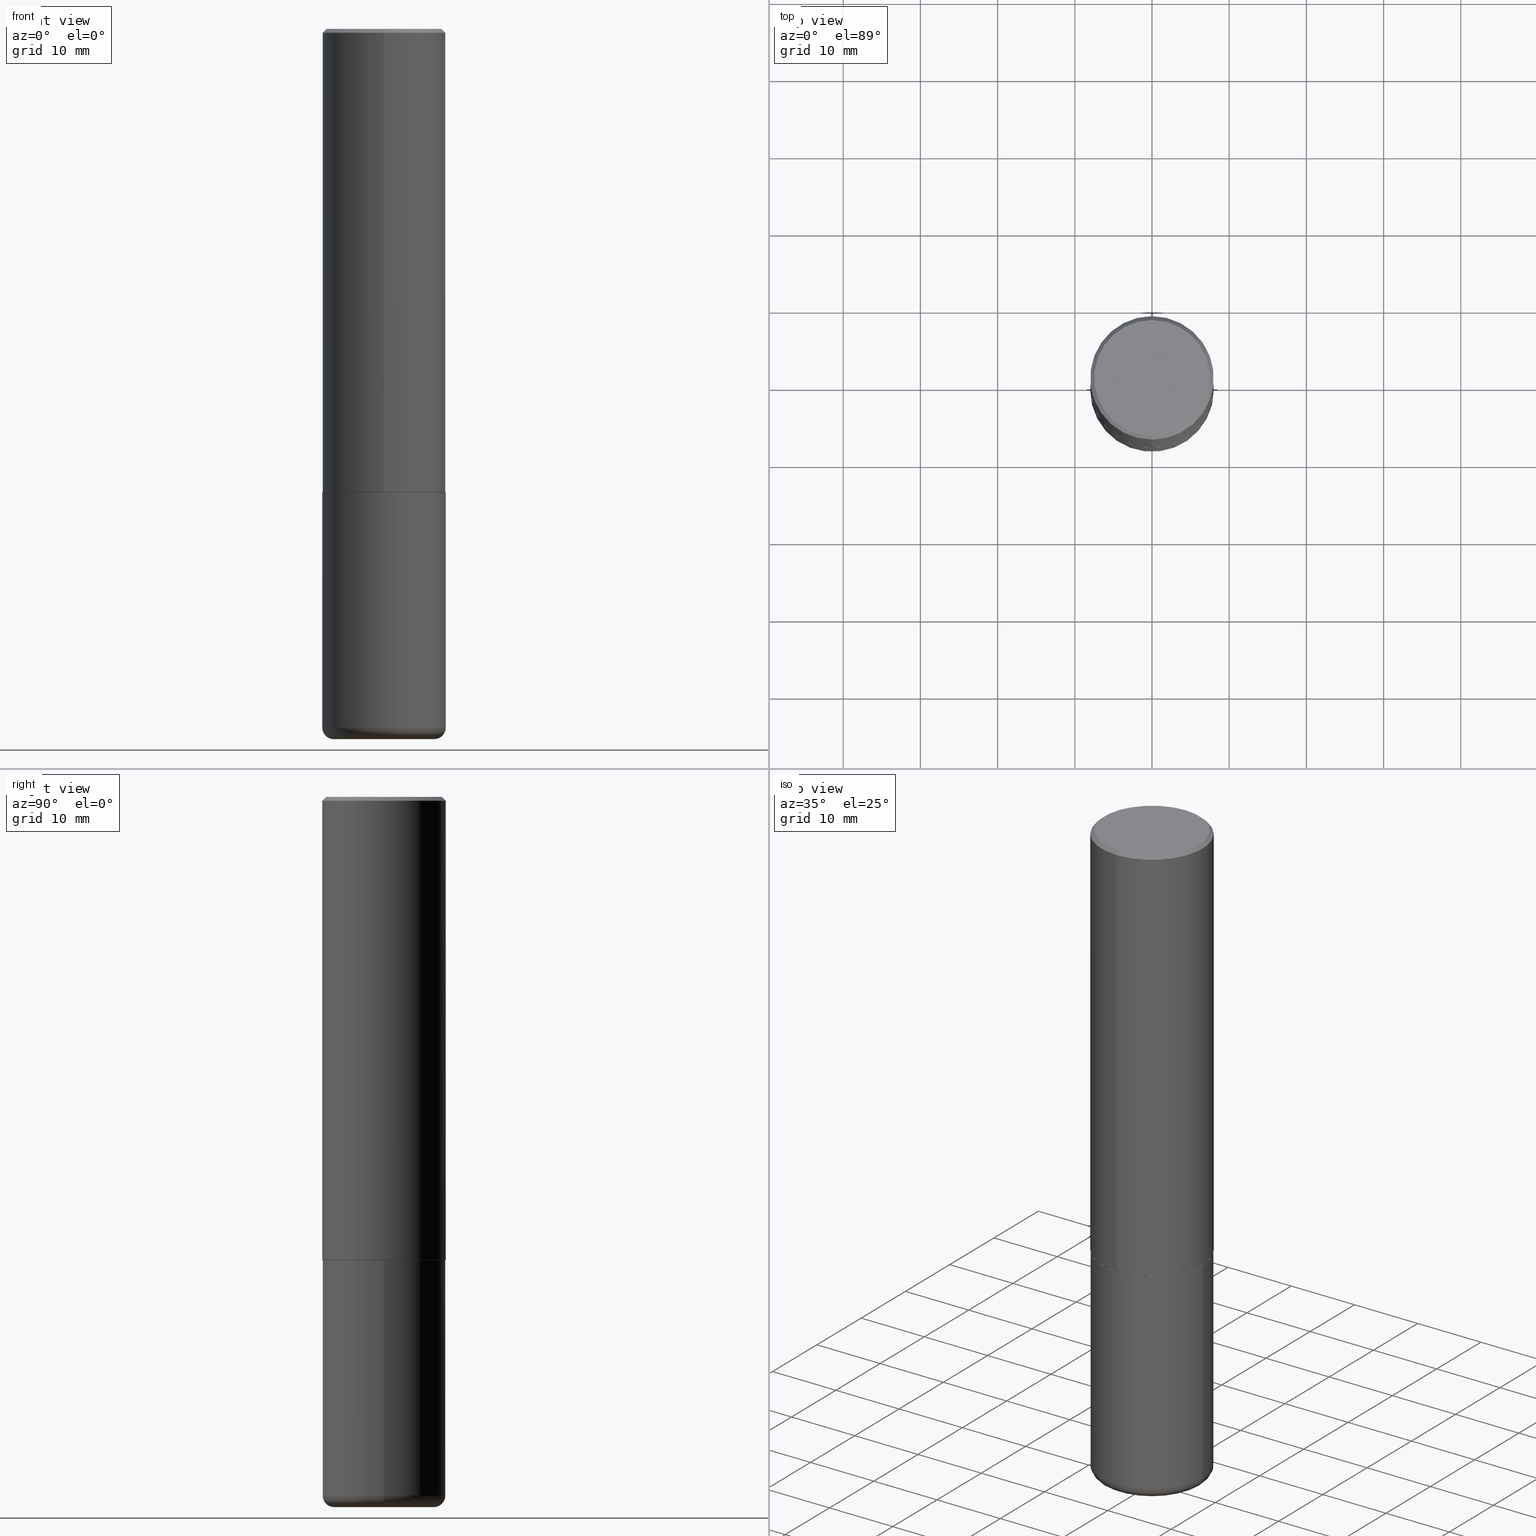
[diagram: canonical four-view strip — front | top / right | iso, engineering-drawing reading convention]
A machine part, canonical four-view strip (front | top / right | iso — engineering-drawing reading convention). The complete STEP part file that produces these views, byte-faithful:
ISO-10303-21;
HEADER;
FILE_DESCRIPTION (( 'STEP AP203' ),
    '1' );
FILE_NAME ('46898.STEP',
    '2024-03-05T06:49:38',
    ( '' ),
    ( '' ),
    'SwSTEP 2.0',
    'SolidWorks 2023',
    '' );
FILE_SCHEMA (( 'CONFIG_CONTROL_DESIGN' ));
ENDSEC;

DATA;
#1 = CC_DESIGN_PERSON_AND_ORGANIZATION_ASSIGNMENT ( #214, #205, ( #362 ) ) ;
#2 = DIRECTION ( 'NONE',  ( -2.445468806185136597E-29, 3.491481338843145583E-15, 1.000000000000000000 ) ) ;
#3 = AXIS2_PLACEMENT_3D ( 'NONE', #187, #211, #182 ) ;
#4 = VERTEX_POINT ( 'NONE', #83 ) ;
#5 = LOCAL_TIME ( 1, 49, 38.00000000000000000, #374 ) ;
#6 = DIRECTION ( 'NONE',  ( 2.446939916028603526E-29, -3.489374625816928275E-15, -1.000000000000000000 ) ) ;
#7 = VERTEX_POINT ( 'NONE', #410 ) ;
#8 = DIRECTION ( 'NONE',  ( -2.445468806185136597E-29, 3.491481338843145583E-15, 1.000000000000000000 ) ) ;
#9 = AXIS2_PLACEMENT_3D ( 'NONE', #99, #391, #240 ) ;
#10 = DATE_AND_TIME ( #294, #225 ) ;
#11 = ORIENTED_EDGE ( 'NONE', *, *, #148, .T. ) ;
#12 = EDGE_CURVE ( 'NONE', #228, #161, #56, .T. ) ;
#13 = VERTEX_POINT ( 'NONE', #49 ) ;
#14 = LOCAL_TIME ( 1, 49, 38.00000000000000000, #409 ) ;
#15 = DIRECTION ( 'NONE',  ( -2.446939916028603526E-29, 3.489374625816928275E-15, 1.000000000000000000 ) ) ;
#16 = FACE_OUTER_BOUND ( 'NONE', #300, .T. ) ;
#17 = EDGE_CURVE ( 'NONE', #161, #345, #52, .T. ) ;
#18 = PERSON_AND_ORGANIZATION_ROLE ( 'design_supplier' ) ;
#19 = DIRECTION ( 'NONE',  ( -6.982962677686266711E-15, -1.000000000000000000, 3.480615376543096919E-15 ) ) ;
#20 = AXIS2_PLACEMENT_3D ( 'NONE', #117, #367, #85 ) ;
#21 = CARTESIAN_POINT ( 'NONE',  ( 8.712960809557023143E-29, -1.243979886216424317E-14, -3.562899999999999956 ) ) ;
#22 = CC_DESIGN_APPROVAL ( #136, ( #274 ) ) ;
#23 = DIRECTION ( 'NONE',  ( 2.446939916028603526E-29, -3.489374625816928275E-15, -1.000000000000000000 ) ) ;
#24 = LINE ( 'NONE', #258, #54 ) ;
#25 = CARTESIAN_POINT ( 'NONE',  ( 0.2558500000000000218, -1.422638986325027382E-14, -3.562899999999999956 ) ) ;
#26 = ORIENTED_EDGE ( 'NONE', *, *, #115, .T. ) ;
#27 = CARTESIAN_POINT ( 'NONE',  ( 0.000000000000000000, 0.000000000000000000, 0.000000000000000000 ) ) ;
#28 = APPLICATION_CONTEXT ( 'configuration controlled 3d designs of mechanical parts and assemblies' ) ;
#29 = DIRECTION ( 'NONE',  ( -6.982962677686266711E-15, -1.000000000000000000, 3.480615376543096919E-15 ) ) ;
#30 = VERTEX_POINT ( 'NONE', #303 ) ;
#31 = DIRECTION ( 'NONE',  ( -1.000000000000000000, 6.982962677686265922E-15, -4.876176775795935793E-29 ) ) ;
#32 = ORIENTED_EDGE ( 'NONE', *, *, #327, .F. ) ;
#33 = CIRCLE ( 'NONE', #267, 0.3149500000000000632 ) ;
#34 = EDGE_CURVE ( 'NONE', #339, #318, #143, .T. ) ;
#35 = DIRECTION ( 'NONE',  ( 1.000000000000000000, -6.982962677686269866E-15, 4.883557194083113462E-29 ) ) ;
#36 = FACE_OUTER_BOUND ( 'NONE', #366, .T. ) ;
#37 = CARTESIAN_POINT ( 'NONE',  ( 4.893879832057223376E-31, -6.978749251633880462E-17, -0.02000000000000006981 ) ) ;
#38 = CONICAL_SURFACE ( 'NONE', #218, 0.3149500000000000632, 0.7853981633974473908 ) ;
#39 = APPROVAL_ROLE ( '' ) ;
#40 = EDGE_LOOP ( 'NONE', ( #194, #139 ) ) ;
#41 = ADVANCED_FACE ( 'NONE', ( #16 ), #120, .T. ) ;
#42 = APPROVAL_DATE_TIME ( #10, #226 ) ;
#43 = ORIENTED_EDGE ( 'NONE', *, *, #283, .F. ) ;
#44 = EDGE_LOOP ( 'NONE', ( #297, #173 ) ) ;
#45 = ADVANCED_FACE ( 'NONE', ( #268 ), #413, .T. ) ;
#46 = CALENDAR_DATE ( 2024, 5, 3 ) ;
#47 = CIRCLE ( 'NONE', #338, 0.3149500000000000077 ) ;
#48 = FACE_OUTER_BOUND ( 'NONE', #206, .T. ) ;
#49 = CARTESIAN_POINT ( 'NONE',  ( -0.3149500000000000077, -8.105833694113324624E-15, -2.362199999999999633 ) ) ;
#50 = CARTESIAN_POINT ( 'NONE',  ( 0.3149500000000000077, -1.044686131395256792E-14, -2.362199999999999633 ) ) ;
#51 = APPROVAL_ROLE ( '' ) ;
#52 = CIRCLE ( 'NONE', #20, 0.3149500000000002853 ) ;
#53 = CARTESIAN_POINT ( 'NONE',  ( 0.3149500000000000077, -2.199284095337289871E-15, 1.535751875536930130E-29 ) ) ;
#54 = VECTOR ( 'NONE', #59, 39.37007874015748143 ) ;
#55 = EDGE_CURVE ( 'NONE', #383, #241, #355, .T. ) ;
#56 = LINE ( 'NONE', #177, #208 ) ;
#57 = CARTESIAN_POINT ( 'NONE',  ( -7.159308785100011389E-46, 1.020928640277417393E-31, 2.925821242362014033E-17 ) ) ;
#58 = ORIENTED_EDGE ( 'NONE', *, *, #186, .F. ) ;
#59 = DIRECTION ( 'NONE',  ( -2.446939916028603526E-29, 3.489374625816928669E-15, 1.000000000000000000 ) ) ;
#60 = DIRECTION ( 'NONE',  ( 7.105427357601001859E-15, 1.000000000000000000, -3.491481338843145583E-15 ) ) ;
#61 = ORIENTED_EDGE ( 'NONE', *, *, #17, .F. ) ;
#62 = PLANE ( 'NONE',  #281 ) ;
#63 = EDGE_CURVE ( 'NONE', #265, #4, #331, .T. ) ;
#64 = ORIENTED_EDGE ( 'NONE', *, *, #108, .T. ) ;
#65 = DIRECTION ( 'NONE',  ( -2.446939916028603526E-29, 3.489374625816928275E-15, 1.000000000000000000 ) ) ;
#66 = CIRCLE ( 'NONE', #157, 0.3149500000000002853 ) ;
#67 = ORIENTED_EDGE ( 'NONE', *, *, #186, .T. ) ;
#68 = DIRECTION ( 'NONE',  ( -6.982962677686265922E-15, -1.000000000000000000, 3.483117034309590343E-15 ) ) ;
#69 = CARTESIAN_POINT ( 'NONE',  ( 8.712960809557023143E-29, -1.243979886216424317E-14, -3.562899999999999956 ) ) ;
#70 = DIRECTION ( 'NONE',  ( 0.000000000000000000, 0.000000000000000000, 1.000000000000000000 ) ) ;
#71 = CC_DESIGN_PERSON_AND_ORGANIZATION_ASSIGNMENT ( #405, #113, ( #274 ) ) ;
#72 = CIRCLE ( 'NONE', #306, 0.3149500000000000077 ) ;
#73 = AXIS2_PLACEMENT_3D ( 'NONE', #57, #260, #359 ) ;
#74 = VERTEX_POINT ( 'NONE', #273 ) ;
#75 = PERSON_AND_ORGANIZATION ( #388, #122 ) ;
#76 = ORIENTED_EDGE ( 'NONE', *, *, #358, .F. ) ;
#77 = EDGE_CURVE ( 'NONE', #161, #30, #334, .T. ) ;
#78 = FACE_OUTER_BOUND ( 'NONE', #326, .T. ) ;
#79 = DATE_AND_TIME ( #181, #378 ) ;
#80 = DIRECTION ( 'NONE',  ( -2.446939916028603526E-29, 3.489374625816928275E-15, 1.000000000000000000 ) ) ;
#81 = APPLICATION_CONTEXT ( 'configuration controlled 3d designs of mechanical parts and assemblies' ) ;
#82 = SHAPE_DEFINITION_REPRESENTATION ( #395, #131 ) ;
#83 = CARTESIAN_POINT ( 'NONE',  ( -2.092108864420428426E-15, -0.2949500000000000455, 1.058449258308323097E-15 ) ) ;
#84 = CARTESIAN_POINT ( 'NONE',  ( 2.237854346276435985E-15, 0.3149500000000001743, -1.098978538401042082E-15 ) ) ;
#85 = DIRECTION ( 'NONE',  ( -6.982962677686265922E-15, -1.000000000000000000, 3.469564049740290009E-15 ) ) ;
#86 = CC_DESIGN_APPROVAL ( #226, ( #204 ) ) ;
#87 = DIRECTION ( 'NONE',  ( -2.445468806185136597E-29, 3.491481338843145583E-15, 1.000000000000000000 ) ) ;
#88 = EDGE_CURVE ( 'NONE', #345, #161, #66, .T. ) ;
#89 = CARTESIAN_POINT ( 'NONE',  ( -0.2558500000000000218, -1.062187527272202748E-14, -3.562899999999999956 ) ) ;
#90 = PRODUCT ( '46898', '46898', '', ( #291 ) ) ;
#91 = ORIENTED_EDGE ( 'NONE', *, *, #340, .F. ) ;
#92 = CARTESIAN_POINT ( 'NONE',  ( 2.234301632597693067E-15, 0.3139499999999917357, -2.362200000000000966 ) ) ;
#93 = AXIS2_PLACEMENT_3D ( 'NONE', #247, #15, #19 ) ;
#94 = ORIENTED_EDGE ( 'NONE', *, *, #55, .T. ) ;
#95 = FACE_OUTER_BOUND ( 'NONE', #44, .T. ) ;
#96 = ORIENTED_EDGE ( 'NONE', *, *, #287, .T. ) ;
#97 = CARTESIAN_POINT ( 'NONE',  ( 0.2558500000000000218, -1.443273641037590422E-14, -3.621999999999999886 ) ) ;
#98 = VERTEX_POINT ( 'NONE', #50 ) ;
#99 = CARTESIAN_POINT ( 'NONE',  ( 0.000000000000000000, 0.000000000000000000, 0.000000000000000000 ) ) ;
#100 = AXIS2_PLACEMENT_3D ( 'NONE', #21, #402, #330 ) ;
#101 = AXIS2_PLACEMENT_3D ( 'NONE', #396, #70, #397 ) ;
#102 = CARTESIAN_POINT ( 'NONE',  ( 0.3149500000000000077, -1.463908295750153462E-14, -3.562899999999999956 ) ) ;
#103 = LINE ( 'NONE', #137, #129 ) ;
#104 = ORIENTED_EDGE ( 'NONE', *, *, #167, .T. ) ;
#105 = CIRCLE ( 'NONE', #169, 0.05909999999999999282 ) ;
#106 = CARTESIAN_POINT ( 'NONE',  ( -2.199284095337233467E-15, -0.3149500000000085564, -2.361199999999998411 ) ) ;
#107 = ORIENTED_EDGE ( 'NONE', *, *, #115, .F. ) ;
#108 = EDGE_CURVE ( 'NONE', #4, #7, #151, .T. ) ;
#109 = DIRECTION ( 'NONE',  ( -2.445468806185136597E-29, 3.491481338843145583E-15, 1.000000000000000000 ) ) ;
#110 = DIRECTION ( 'NONE',  ( -6.982962677686265922E-15, -1.000000000000000000, 3.469564049740290009E-15 ) ) ;
#111 = CLOSED_SHELL ( 'NONE', ( #154, #269, #179, #253, #180, #41, #216, #198 ) ) ;
#112 = CIRCLE ( 'NONE', #346, 0.3149500000000000632 ) ;
#113 = PERSON_AND_ORGANIZATION_ROLE ( 'creator' ) ;
#114 = CARTESIAN_POINT ( 'NONE',  ( 5.780161469642767162E-29, -8.242600741104747764E-15, -2.362199999999999633 ) ) ;
#115 = EDGE_CURVE ( 'NONE', #74, #345, #333, .T. ) ;
#116 = SECURITY_CLASSIFICATION_LEVEL ( 'unclassified' ) ;
#117 = CARTESIAN_POINT ( 'NONE',  ( 5.777714529726738236E-29, -8.239111366478930822E-15, -2.361199999999999743 ) ) ;
#118 = APPROVAL_ROLE ( '' ) ;
#119 = DIRECTION ( 'NONE',  ( -2.445468806185136597E-29, 3.491481338843145583E-15, 1.000000000000000000 ) ) ;
#120 = CONICAL_SURFACE ( 'NONE', #93, 0.3139500000000000068, 0.7853981633975507526 ) ;
#121 = PLANE ( 'NONE',  #183 ) ;
#122 = ORGANIZATION ( 'UNSPECIFIED', 'UNSPECIFIED', '' ) ;
#123 = CC_DESIGN_PERSON_AND_ORGANIZATION_ASSIGNMENT ( #368, #18, ( #274 ) ) ;
#124 = FACE_OUTER_BOUND ( 'NONE', #259, .T. ) ;
#125 = DIRECTION ( 'NONE',  ( -6.982962677686265922E-15, -1.000000000000000000, 3.489374625816928669E-15 ) ) ;
#126 = ORIENTED_EDGE ( 'NONE', *, *, #12, .F. ) ;
#127 = DIRECTION ( 'NONE',  ( 1.000000000000000000, -6.982962677686263555E-15, 0.000000000000000000 ) ) ;
#128 = CIRCLE ( 'NONE', #361, 0.05909999999999999282 ) ;
#129 = VECTOR ( 'NONE', #357, 39.37007874015748143 ) ;
#130 = ORIENTED_EDGE ( 'NONE', *, *, #283, .T. ) ;
#131 = ADVANCED_BREP_SHAPE_REPRESENTATION ( '46898', ( #356, #353, #101 ), #325 ) ;
#132 = ADVANCED_FACE ( 'NONE', ( #78 ), #175, .T. ) ;
#133 = CARTESIAN_POINT ( 'NONE',  ( 8.857488016002564476E-29, -1.264614540928987199E-14, -3.621999999999999886 ) ) ;
#134 = EDGE_LOOP ( 'NONE', ( #381, #290, #43, #171 ) ) ;
#135 = APPLICATION_PROTOCOL_DEFINITION ( 'international standard', 'config_control_design', 1994, #81 ) ;
#136 = APPROVAL ( #278, 'UNSPECIFIED' ) ;
#137 = CARTESIAN_POINT ( 'NONE',  ( -0.3149500000000000077, 2.237854346276435590E-15, -1.549218606675782676E-29 ) ) ;
#138 = PERSON_AND_ORGANIZATION ( #388, #122 ) ;
#139 = ORIENTED_EDGE ( 'NONE', *, *, #287, .F. ) ;
#140 = CC_DESIGN_PERSON_AND_ORGANIZATION_ASSIGNMENT ( #138, #328, ( #204 ) ) ;
#141 = FACE_OUTER_BOUND ( 'NONE', #363, .T. ) ;
#142 = ORIENTED_EDGE ( 'NONE', *, *, #77, .F. ) ;
#143 = CIRCLE ( 'NONE', #100, 0.3149500000000000077 ) ;
#144 = CIRCLE ( 'NONE', #307, 0.3139500000000000068 ) ;
#145 = CARTESIAN_POINT ( 'NONE',  ( -2.192301132659545875E-15, -0.3139500000000082780, -2.362199999999998745 ) ) ;
#146 = CARTESIAN_POINT ( 'NONE',  ( -7.159308785100011389E-46, 1.020928640277417393E-31, 2.925821242362014033E-17 ) ) ;
#147 = DIRECTION ( 'NONE',  ( -4.851104656540959542E-15, -0.7071067811865493491, -0.7071067811865457964 ) ) ;
#148 = EDGE_CURVE ( 'NONE', #339, #98, #219, .T. ) ;
#149 = CIRCLE ( 'NONE', #313, 0.3149500000000000077 ) ;
#150 = CALENDAR_DATE ( 2024, 5, 3 ) ;
#151 = LINE ( 'NONE', #373, #301 ) ;
#152 = DATE_AND_TIME ( #150, #14 ) ;
#153 = DIRECTION ( 'NONE',  ( 6.982962677686265922E-15, 1.000000000000000000, -3.483117034309590343E-15 ) ) ;
#154 = ADVANCED_FACE ( 'NONE', ( #213 ), #393, .T. ) ;
#155 = DIRECTION ( 'NONE',  ( 2.438088387897960049E-29, -3.491481338843145188E-15, -1.000000000000000000 ) ) ;
#156 = AXIS2_PLACEMENT_3D ( 'NONE', #114, #271, #246 ) ;
#157 = AXIS2_PLACEMENT_3D ( 'NONE', #279, #403, #110 ) ;
#158 = CARTESIAN_POINT ( 'NONE',  ( 4.893879832057223376E-31, -6.978749251633880462E-17, -0.02000000000000006981 ) ) ;
#159 = FACE_OUTER_BOUND ( 'NONE', #262, .T. ) ;
#160 = PLANE ( 'NONE',  #257 ) ;
#161 = VERTEX_POINT ( 'NONE', #207 ) ;
#162 = DIRECTION ( 'NONE',  ( -6.982962677686266711E-15, -1.000000000000000000, 3.491481338843145583E-15 ) ) ;
#163 = VECTOR ( 'NONE', #248, 39.37007874015748143 ) ;
#164 = ORIENTED_EDGE ( 'NONE', *, *, #63, .T. ) ;
#165 = CYLINDRICAL_SURFACE ( 'NONE', #9, 0.3149500000000000077 ) ;
#166 = LENGTH_MEASURE_WITH_UNIT ( LENGTH_MEASURE( 0.02539999999999999897 ), #296 );
#167 = EDGE_CURVE ( 'NONE', #74, #228, #406, .T. ) ;
#168 = CLOSED_SHELL ( 'NONE', ( #45, #371, #210, #400, #132, #310 ) ) ;
#169 = AXIS2_PLACEMENT_3D ( 'NONE', #25, #162, #341 ) ;
#170 = COORDINATED_UNIVERSAL_TIME_OFFSET ( 5, 0, .BEHIND. ) ;
#171 = ORIENTED_EDGE ( 'NONE', *, *, #261, .F. ) ;
#172 = LINE ( 'NONE', #199, #384 ) ;
#173 = ORIENTED_EDGE ( 'NONE', *, *, #55, .F. ) ;
#174 = ORIENTED_EDGE ( 'NONE', *, *, #88, .F. ) ;
#175 = TOROIDAL_SURFACE ( 'NONE', #415, 0.2558500000000000218, 0.05909999999999995812 ) ;
#176 = COORDINATED_UNIVERSAL_TIME_OFFSET ( 5, 0, .BEHIND. ) ;
#177 = CARTESIAN_POINT ( 'NONE',  ( 2.230748918918891775E-15, 0.3139499999999917357, -2.362200000000000966 ) ) ;
#178 = ORIENTED_EDGE ( 'NONE', *, *, #335, .F. ) ;
#179 = ADVANCED_FACE ( 'NONE', ( #48 ), #224, .T. ) ;
#180 = ADVANCED_FACE ( 'NONE', ( #417 ), #284, .T. ) ;
#181 = CALENDAR_DATE ( 2024, 5, 3 ) ;
#182 = DIRECTION ( 'NONE',  ( 1.000000000000000000, -6.982962677686263555E-15, 0.000000000000000000 ) ) ;
#183 = AXIS2_PLACEMENT_3D ( 'NONE', #389, #222, #414 ) ;
#184 = APPROVAL_PERSON_ORGANIZATION ( #212, #385, #51 ) ;
#185 = DIRECTION ( 'NONE',  ( -6.982962677686266711E-15, -1.000000000000000000, 3.480615376543096919E-15 ) ) ;
#186 = EDGE_CURVE ( 'NONE', #318, #339, #72, .T. ) ;
#187 = CARTESIAN_POINT ( 'NONE',  ( 8.857488016002564476E-29, -1.264614540928987199E-14, -3.621999999999999886 ) ) ;
#188 = DIRECTION ( 'NONE',  ( -6.982962677686264344E-15, -1.000000000000000000, 3.489374625816927880E-15 ) ) ;
#189 = ORIENTED_EDGE ( 'NONE', *, *, #392, .F. ) ;
#190 = VECTOR ( 'NONE', #407, 39.37007874015748143 ) ;
#191 = PLANE ( 'NONE',  #266 ) ;
#192 = DIRECTION ( 'NONE',  ( -2.446939916028603526E-29, 3.489374625816928275E-15, 1.000000000000000000 ) ) ;
#193 = EDGE_CURVE ( 'NONE', #383, #318, #128, .T. ) ;
#194 = ORIENTED_EDGE ( 'NONE', *, *, #167, .F. ) ;
#195 = CARTESIAN_POINT ( 'NONE',  ( 8.857488016002564476E-29, -1.264614540928987199E-14, -3.621999999999999886 ) ) ;
#196 = ORIENTED_EDGE ( 'NONE', *, *, #34, .F. ) ;
#197 = ORIENTED_EDGE ( 'NONE', *, *, #327, .T. ) ;
#198 = ADVANCED_FACE ( 'NONE', ( #159 ), #121, .F. ) ;
#199 = CARTESIAN_POINT ( 'NONE',  ( 2.199284095337290265E-15, 0.3149500000000000077, -0.02000000000000116615 ) ) ;
#200 = DIRECTION ( 'NONE',  ( -2.446939916028603526E-29, 3.489374625816928275E-15, 1.000000000000000000 ) ) ;
#201 = PERSON_AND_ORGANIZATION ( #388, #122 ) ;
#202 = APPLICATION_PROTOCOL_DEFINITION ( 'international standard', 'config_control_design', 1994, #28 ) ;
#203 = ORIENTED_EDGE ( 'NONE', *, *, #412, .F. ) ;
#204 = PRODUCT_DEFINITION ( 'UNKNOWN', '', #274, #404 ) ;
#205 = PERSON_AND_ORGANIZATION_ROLE ( 'classification_officer' ) ;
#206 = EDGE_LOOP ( 'NONE', ( #178, #64, #130, #76 ) ) ;
#207 = CARTESIAN_POINT ( 'NONE',  ( 2.237854346276465567E-15, 0.3149499999999920141, -2.361200000000000632 ) ) ;
#208 = VECTOR ( 'NONE', #242, 39.37007874015748143 ) ;
#209 = LOCAL_TIME ( 1, 49, 38.00000000000000000, #176 ) ;
#210 = ADVANCED_FACE ( 'NONE', ( #124 ), #191, .F. ) ;
#211 = DIRECTION ( 'NONE',  ( -2.445468806185136597E-29, 3.491481338843145583E-15, 1.000000000000000000 ) ) ;
#212 = PERSON_AND_ORGANIZATION ( #388, #122 ) ;
#213 = FACE_OUTER_BOUND ( 'NONE', #223, .T. ) ;
#214 = PERSON_AND_ORGANIZATION ( #388, #122 ) ;
#215 = CARTESIAN_POINT ( 'NONE',  ( 8.712960809557023143E-29, -1.243979886216424317E-14, -3.562899999999999956 ) ) ;
#216 = ADVANCED_FACE ( 'NONE', ( #309 ), #160, .F. ) ;
#217 = VECTOR ( 'NONE', #376, 39.37007874015748143 ) ;
#218 = AXIS2_PLACEMENT_3D ( 'NONE', #158, #6, #380 ) ;
#219 = LINE ( 'NONE', #53, #217 ) ;
#220 = DIRECTION ( 'NONE',  ( 1.000000000000000000, -6.982962677686266711E-15, 0.000000000000000000 ) ) ;
#221 = ORIENTED_EDGE ( 'NONE', *, *, #193, .F. ) ;
#222 = DIRECTION ( 'NONE',  ( 2.446939916028602965E-29, -3.489374625816928669E-15, -1.000000000000000000 ) ) ;
#223 = EDGE_LOOP ( 'NONE', ( #104, #342, #174, #107 ) ) ;
#224 = CONICAL_SURFACE ( 'NONE', #256, 0.3149500000000000632, 0.7853981633974473908 ) ;
#225 = LOCAL_TIME ( 1, 49, 38.00000000000000000, #170 ) ;
#226 = APPROVAL ( #263, 'UNSPECIFIED' ) ;
#227 = CARTESIAN_POINT ( 'NONE',  ( 0.000000000000000000, 0.000000000000000000, 0.000000000000000000 ) ) ;
#228 = VERTEX_POINT ( 'NONE', #92 ) ;
#229 = DIRECTION ( 'NONE',  ( 1.000000000000000000, -6.982962677686269866E-15, 0.000000000000000000 ) ) ;
#230 = ORIENTED_EDGE ( 'NONE', *, *, #108, .F. ) ;
#231 = CARTESIAN_POINT ( 'NONE',  ( 8.712960809557023143E-29, -1.243979886216424317E-14, -3.562899999999999956 ) ) ;
#232 = ORIENTED_EDGE ( 'NONE', *, *, #323, .T. ) ;
#233 = DIRECTION ( 'NONE',  ( -2.445468806185136597E-29, 3.491481338843145583E-15, 1.000000000000000000 ) ) ;
#234 =( NAMED_UNIT ( * ) PLANE_ANGLE_UNIT ( ) SI_UNIT ( $, .RADIAN. ) );
#235 = DIMENSIONAL_EXPONENTS ( 1.000000000000000000, 0.000000000000000000, 0.000000000000000000, 0.000000000000000000, 0.000000000000000000, 0.000000000000000000, 0.000000000000000000 ) ;
#236 = DIRECTION ( 'NONE',  ( 4.937700262164543309E-15, 0.7071067811865444641, -0.7071067811865506814 ) ) ;
#237 = ORIENTED_EDGE ( 'NONE', *, *, #261, .T. ) ;
#238 = AXIS2_PLACEMENT_3D ( 'NONE', #243, #119, #375 ) ;
#239 = CIRCLE ( 'NONE', #73, 0.2949500000000000455 ) ;
#240 = DIRECTION ( 'NONE',  ( 1.000000000000000000, -6.982962677686266711E-15, 4.876176775795936353E-29 ) ) ;
#241 = VERTEX_POINT ( 'NONE', #97 ) ;
#242 = DIRECTION ( 'NONE',  ( 5.024295867788576727E-15, 0.7071067811866224018, 0.7071067811864726327 ) ) ;
#243 = CARTESIAN_POINT ( 'NONE',  ( 0.000000000000000000, 0.000000000000000000, 0.000000000000000000 ) ) ;
#244 = APPROVAL_PERSON_ORGANIZATION ( #320, #226, #39 ) ;
#245 = DATE_TIME_ROLE ( 'classification_date' ) ;
#246 = DIRECTION ( 'NONE',  ( -6.982962677686266711E-15, -1.000000000000000000, 3.480615376543096919E-15 ) ) ;
#247 = CARTESIAN_POINT ( 'NONE',  ( 5.780161469642767162E-29, -8.242600741104747764E-15, -2.362199999999999633 ) ) ;
#248 = DIRECTION ( 'NONE',  ( -2.446939916028603526E-29, 3.489374625816928669E-15, 1.000000000000000000 ) ) ;
#249 = CC_DESIGN_APPROVAL ( #385, ( #362 ) ) ;
#250 = CARTESIAN_POINT ( 'NONE',  ( -0.3149500000000000077, -1.020194451588780718E-14, -3.562899999999999956 ) ) ;
#251 = CARTESIAN_POINT ( 'NONE',  ( 5.776686413970529753E-29, -8.247577218615278049E-15, -2.362199999999999633 ) ) ;
#252 = ORIENTED_EDGE ( 'NONE', *, *, #358, .T. ) ;
#253 = ADVANCED_FACE ( 'NONE', ( #314 ), #38, .T. ) ;
#254 = CARTESIAN_POINT ( 'NONE',  ( 2.129454468560427362E-15, 0.2949500000000000455, -9.999328334610827920E-16 ) ) ;
#255 = ORIENTED_EDGE ( 'NONE', *, *, #148, .F. ) ;
#256 = AXIS2_PLACEMENT_3D ( 'NONE', #308, #23, #153 ) ;
#257 = AXIS2_PLACEMENT_3D ( 'NONE', #418, #382, #125 ) ;
#258 = CARTESIAN_POINT ( 'NONE',  ( -2.199284095337290265E-15, -0.3149500000000001743, 1.098978538401042082E-15 ) ) ;
#259 = EDGE_LOOP ( 'NONE', ( #329, #232 ) ) ;
#260 = DIRECTION ( 'NONE',  ( -2.446939916028603526E-29, 3.489374625816928275E-15, 1.000000000000000000 ) ) ;
#261 = EDGE_CURVE ( 'NONE', #345, #7, #24, .T. ) ;
#262 = EDGE_LOOP ( 'NONE', ( #164, #398 ) ) ;
#263 = APPROVAL_STATUS ( 'not_yet_approved' ) ;
#264 = ORIENTED_EDGE ( 'NONE', *, *, #63, .F. ) ;
#265 = VERTEX_POINT ( 'NONE', #254 ) ;
#266 = AXIS2_PLACEMENT_3D ( 'NONE', #251, #155, #349 ) ;
#267 = AXIS2_PLACEMENT_3D ( 'NONE', #37, #200, #68 ) ;
#268 = FACE_OUTER_BOUND ( 'NONE', #316, .T. ) ;
#269 = ADVANCED_FACE ( 'NONE', ( #343 ), #280, .T. ) ;
#270 = DATE_AND_TIME ( #275, #5 ) ;
#271 = DIRECTION ( 'NONE',  ( -2.446939916028603526E-29, 3.489374625816928275E-15, 1.000000000000000000 ) ) ;
#272 = COORDINATED_UNIVERSAL_TIME_OFFSET ( 5, 0, .BEHIND. ) ;
#273 = CARTESIAN_POINT ( 'NONE',  ( -2.192301132659545875E-15, -0.3139500000000082780, -2.362199999999998745 ) ) ;
#274 = PRODUCT_DEFINITION_FORMATION_WITH_SPECIFIED_SOURCE ( 'ANY', '', #90, .NOT_KNOWN. ) ;
#275 = CALENDAR_DATE ( 2024, 5, 3 ) ;
#276 = CARTESIAN_POINT ( 'NONE',  ( 5.780161469642767162E-29, -8.242600741104747764E-15, -2.362199999999999633 ) ) ;
#277 = CC_DESIGN_DATE_AND_TIME_ASSIGNMENT ( #79, #411, ( #204 ) ) ;
#278 = APPROVAL_STATUS ( 'not_yet_approved' ) ;
#279 = CARTESIAN_POINT ( 'NONE',  ( 5.777714529726738236E-29, -8.239111366478930822E-15, -2.361199999999999743 ) ) ;
#280 = CYLINDRICAL_SURFACE ( 'NONE', #332, 0.3149500000000001743 ) ;
#281 = AXIS2_PLACEMENT_3D ( 'NONE', #195, #317, #31 ) ;
#282 = CARTESIAN_POINT ( 'NONE',  ( 4.893879832057223376E-31, -6.978749251633880462E-17, -0.02000000000000006981 ) ) ;
#283 = EDGE_CURVE ( 'NONE', #7, #30, #112, .T. ) ;
#284 = CYLINDRICAL_SURFACE ( 'NONE', #344, 0.3149500000000001743 ) ;
#285 = DIRECTION ( 'NONE',  ( -2.446939916028603526E-29, 3.489374625816928275E-15, 1.000000000000000000 ) ) ;
#286 = ORIENTED_EDGE ( 'NONE', *, *, #323, .F. ) ;
#287 = EDGE_CURVE ( 'NONE', #228, #74, #144, .T. ) ;
#288 = AXIS2_PLACEMENT_3D ( 'NONE', #133, #2, #127 ) ;
#289 = DIRECTION ( 'NONE',  ( -1.000000000000000000, 7.105427357600993181E-15, 0.000000000000000000 ) ) ;
#290 = ORIENTED_EDGE ( 'NONE', *, *, #77, .T. ) ;
#291 = MECHANICAL_CONTEXT ( 'NONE', #28, 'mechanical' ) ;
#292 =( NAMED_UNIT ( * ) SI_UNIT ( $, .STERADIAN. ) SOLID_ANGLE_UNIT ( ) );
#293 = EDGE_CURVE ( 'NONE', #241, #383, #408, .T. ) ;
#294 = CALENDAR_DATE ( 2024, 5, 3 ) ;
#295 = ORIENTED_EDGE ( 'NONE', *, *, #293, .T. ) ;
#296 =( LENGTH_UNIT ( ) NAMED_UNIT ( * ) SI_UNIT ( $, .METRE. ) );
#297 = ORIENTED_EDGE ( 'NONE', *, *, #293, .F. ) ;
#298 = PRODUCT_RELATED_PRODUCT_CATEGORY ( 'detail', '', ( #90 ) ) ;
#299 = APPROVAL_STATUS ( 'not_yet_approved' ) ;
#300 = EDGE_LOOP ( 'NONE', ( #126, #96, #26, #61 ) ) ;
#301 = VECTOR ( 'NONE', #147, 39.37007874015748143 ) ;
#302 = DATE_AND_TIME ( #46, #209 ) ;
#303 = CARTESIAN_POINT ( 'NONE',  ( 2.199284095337290265E-15, 0.3149500000000000077, -0.02000000000000116615 ) ) ;
#304 = DIRECTION ( 'NONE',  ( -6.982962677686265922E-15, -1.000000000000000000, 3.489374625816927880E-15 ) ) ;
#305 = DIRECTION ( 'NONE',  ( -2.446939916028603526E-29, 3.489374625816928275E-15, 1.000000000000000000 ) ) ;
#306 = AXIS2_PLACEMENT_3D ( 'NONE', #231, #352, #229 ) ;
#307 = AXIS2_PLACEMENT_3D ( 'NONE', #315, #285, #29 ) ;
#308 = CARTESIAN_POINT ( 'NONE',  ( 4.893879832057223376E-31, -6.978749251633880462E-17, -0.02000000000000006981 ) ) ;
#309 = FACE_OUTER_BOUND ( 'NONE', #40, .T. ) ;
#310 = ADVANCED_FACE ( 'NONE', ( #95 ), #62, .T. ) ;
#311 = CARTESIAN_POINT ( 'NONE',  ( 5.776686413970529753E-29, -8.247577218615278049E-15, -2.362199999999999633 ) ) ;
#312 = AXIS2_PLACEMENT_3D ( 'NONE', #146, #305, #304 ) ;
#313 = AXIS2_PLACEMENT_3D ( 'NONE', #311, #87, #220 ) ;
#314 = FACE_OUTER_BOUND ( 'NONE', #387, .T. ) ;
#315 = CARTESIAN_POINT ( 'NONE',  ( 5.780161469642767162E-29, -8.242600741104747764E-15, -2.362199999999999633 ) ) ;
#316 = EDGE_LOOP ( 'NONE', ( #321, #354, #189, #255 ) ) ;
#317 = DIRECTION ( 'NONE',  ( 2.438088387897960049E-29, -3.491481338843145188E-15, -1.000000000000000000 ) ) ;
#318 = VERTEX_POINT ( 'NONE', #250 ) ;
#319 = APPROVAL_PERSON_ORGANIZATION ( #75, #136, #118 ) ;
#320 = PERSON_AND_ORGANIZATION ( #388, #122 ) ;
#321 = ORIENTED_EDGE ( 'NONE', *, *, #34, .T. ) ;
#322 =( CONVERSION_BASED_UNIT ( 'INCH', #166 ) LENGTH_UNIT ( ) NAMED_UNIT ( #235 ) );
#323 = EDGE_CURVE ( 'NONE', #13, #98, #149, .T. ) ;
#324 = PERSON_AND_ORGANIZATION_ROLE ( 'design_owner' ) ;
#325 =( GEOMETRIC_REPRESENTATION_CONTEXT ( 3 ) GLOBAL_UNCERTAINTY_ASSIGNED_CONTEXT ( ( #364 ) ) GLOBAL_UNIT_ASSIGNED_CONTEXT ( ( #322, #234, #292 ) ) REPRESENTATION_CONTEXT ( 'NONE', 'WORKASPACE' ) );
#326 = EDGE_LOOP ( 'NONE', ( #221, #94, #197, #58 ) ) ;
#327 = EDGE_CURVE ( 'NONE', #241, #339, #105, .T. ) ;
#328 = PERSON_AND_ORGANIZATION_ROLE ( 'creator' ) ;
#329 = ORIENTED_EDGE ( 'NONE', *, *, #392, .T. ) ;
#330 = DIRECTION ( 'NONE',  ( 1.000000000000000000, -6.982962677686269866E-15, 0.000000000000000000 ) ) ;
#331 = CIRCLE ( 'NONE', #312, 0.2949500000000000455 ) ;
#332 = AXIS2_PLACEMENT_3D ( 'NONE', #227, #192, #386 ) ;
#333 = LINE ( 'NONE', #145, #190 ) ;
#334 = LINE ( 'NONE', #84, #163 ) ;
#335 = EDGE_CURVE ( 'NONE', #4, #265, #239, .T. ) ;
#336 = APPROVAL_DATE_TIME ( #152, #136 ) ;
#337 = DIRECTION ( 'NONE',  ( 1.000000000000000000, -6.982962677686269866E-15, 4.883557194083113462E-29 ) ) ;
#338 = AXIS2_PLACEMENT_3D ( 'NONE', #365, #233, #360 ) ;
#339 = VERTEX_POINT ( 'NONE', #102 ) ;
#340 = EDGE_CURVE ( 'NONE', #318, #13, #103, .T. ) ;
#341 = DIRECTION ( 'NONE',  ( 1.000000000000000000, -6.982962677686262766E-15, 0.000000000000000000 ) ) ;
#342 = ORIENTED_EDGE ( 'NONE', *, *, #12, .T. ) ;
#343 = FACE_OUTER_BOUND ( 'NONE', #134, .T. ) ;
#344 = AXIS2_PLACEMENT_3D ( 'NONE', #27, #65, #188 ) ;
#345 = VERTEX_POINT ( 'NONE', #106 ) ;
#346 = AXIS2_PLACEMENT_3D ( 'NONE', #282, #379, #347 ) ;
#347 = DIRECTION ( 'NONE',  ( -6.982962677686265922E-15, -1.000000000000000000, 3.483117034309590343E-15 ) ) ;
#348 = ORIENTED_EDGE ( 'NONE', *, *, #193, .T. ) ;
#349 = DIRECTION ( 'NONE',  ( -1.000000000000000000, 6.982962677686265922E-15, -4.876176775795935793E-29 ) ) ;
#350 = CC_DESIGN_PERSON_AND_ORGANIZATION_ASSIGNMENT ( #201, #324, ( #90 ) ) ;
#351 = EDGE_LOOP ( 'NONE', ( #142, #401, #237, #203 ) ) ;
#352 = DIRECTION ( 'NONE',  ( -2.445468806185136597E-29, 3.491481338843145583E-15, 1.000000000000000000 ) ) ;
#353 = MANIFOLD_SOLID_BREP ( 'Body-Move/Copy2[2]', #111 ) ;
#354 = ORIENTED_EDGE ( 'NONE', *, *, #340, .T. ) ;
#355 = CIRCLE ( 'NONE', #3, 0.2558500000000000218 ) ;
#356 = MANIFOLD_SOLID_BREP ( 'Body-Move/Copy2[1]', #168 ) ;
#357 = DIRECTION ( 'NONE',  ( -2.445468806185136877E-29, 3.491481338843145188E-15, 1.000000000000000000 ) ) ;
#358 = EDGE_CURVE ( 'NONE', #265, #30, #172, .T. ) ;
#359 = DIRECTION ( 'NONE',  ( -6.982962677686265922E-15, -1.000000000000000000, 3.489374625816927880E-15 ) ) ;
#360 = DIRECTION ( 'NONE',  ( 1.000000000000000000, -6.982962677686266711E-15, 0.000000000000000000 ) ) ;
#361 = AXIS2_PLACEMENT_3D ( 'NONE', #89, #60, #289 ) ;
#362 = SECURITY_CLASSIFICATION ( '', '', #116 ) ;
#363 = EDGE_LOOP ( 'NONE', ( #91, #67, #11, #286 ) ) ;
#364 = UNCERTAINTY_MEASURE_WITH_UNIT (LENGTH_MEASURE( 1.000000000000000082E-05 ), #322, 'distance_accuracy_value', 'NONE');
#365 = CARTESIAN_POINT ( 'NONE',  ( 5.776686413970529753E-29, -8.247577218615278049E-15, -2.362199999999999633 ) ) ;
#366 = EDGE_LOOP ( 'NONE', ( #295, #348, #196, #32 ) ) ;
#367 = DIRECTION ( 'NONE',  ( -2.446939916028603526E-29, 3.489374625816928275E-15, 1.000000000000000000 ) ) ;
#368 = PERSON_AND_ORGANIZATION ( #388, #122 ) ;
#369 = AXIS2_PLACEMENT_3D ( 'NONE', #276, #80, #185 ) ;
#370 = CC_DESIGN_SECURITY_CLASSIFICATION ( #362, ( #274 ) ) ;
#371 = ADVANCED_FACE ( 'NONE', ( #36 ), #399, .T. ) ;
#372 = APPROVAL_DATE_TIME ( #270, #385 ) ;
#373 = CARTESIAN_POINT ( 'NONE',  ( -2.160713844398143757E-15, -0.3149500000000001743, -0.01999999999999896999 ) ) ;
#374 = COORDINATED_UNIVERSAL_TIME_OFFSET ( 5, 0, .BEHIND. ) ;
#375 = DIRECTION ( 'NONE',  ( 1.000000000000000000, -6.982962677686266711E-15, 4.876176775795936353E-29 ) ) ;
#376 = DIRECTION ( 'NONE',  ( -2.445468806185136877E-29, 3.491481338843145188E-15, 1.000000000000000000 ) ) ;
#377 = CC_DESIGN_DATE_AND_TIME_ASSIGNMENT ( #302, #245, ( #362 ) ) ;
#378 = LOCAL_TIME ( 1, 49, 38.00000000000000000, #272 ) ;
#379 = DIRECTION ( 'NONE',  ( -2.446939916028603526E-29, 3.489374625816928275E-15, 1.000000000000000000 ) ) ;
#380 = DIRECTION ( 'NONE',  ( 6.982962677686265922E-15, 1.000000000000000000, -3.483117034309590343E-15 ) ) ;
#381 = ORIENTED_EDGE ( 'NONE', *, *, #88, .T. ) ;
#382 = DIRECTION ( 'NONE',  ( -2.446939916028602965E-29, 3.489374625816928669E-15, 1.000000000000000000 ) ) ;
#383 = VERTEX_POINT ( 'NONE', #394 ) ;
#384 = VECTOR ( 'NONE', #236, 39.37007874015748143 ) ;
#385 = APPROVAL ( #299, 'UNSPECIFIED' ) ;
#386 = DIRECTION ( 'NONE',  ( -6.982962677686264344E-15, -1.000000000000000000, 3.489374625816927880E-15 ) ) ;
#387 = EDGE_LOOP ( 'NONE', ( #230, #264, #252, #390 ) ) ;
#388 = PERSON ( 'UNSPECIFIED', 'UNSPECIFIED', 'UNSPECIFIED', ('UNSPECIFIED'), ('UNSPECIFIED'), ('UNSPECIFIED') ) ;
#389 = CARTESIAN_POINT ( 'NONE',  ( 2.059624841783564458E-15, 0.2949500000000000455, -1.014561939672893016E-15 ) ) ;
#390 = ORIENTED_EDGE ( 'NONE', *, *, #412, .T. ) ;
#391 = DIRECTION ( 'NONE',  ( -2.445468806185136597E-29, 3.491481338843145583E-15, 1.000000000000000000 ) ) ;
#392 = EDGE_CURVE ( 'NONE', #98, #13, #47, .T. ) ;
#393 = CONICAL_SURFACE ( 'NONE', #369, 0.3139500000000000068, 0.7853981633975507526 ) ;
#394 = CARTESIAN_POINT ( 'NONE',  ( -0.2558500000000000218, -1.051508316786773174E-14, -3.621999999999999886 ) ) ;
#395 = PRODUCT_DEFINITION_SHAPE ( 'NONE', 'NONE',  #204 ) ;
#396 = CARTESIAN_POINT ( 'NONE',  ( 0.000000000000000000, 0.000000000000000000, 0.000000000000000000 ) ) ;
#397 = DIRECTION ( 'NONE',  ( 1.000000000000000000, 0.000000000000000000, 0.000000000000000000 ) ) ;
#398 = ORIENTED_EDGE ( 'NONE', *, *, #335, .T. ) ;
#399 = TOROIDAL_SURFACE ( 'NONE', #416, 0.2558500000000000218, 0.05909999999999995812 ) ;
#400 = ADVANCED_FACE ( 'NONE', ( #141 ), #165, .T. ) ;
#401 = ORIENTED_EDGE ( 'NONE', *, *, #17, .T. ) ;
#402 = DIRECTION ( 'NONE',  ( -2.445468806185136597E-29, 3.491481338843145583E-15, 1.000000000000000000 ) ) ;
#403 = DIRECTION ( 'NONE',  ( -2.446939916028603526E-29, 3.489374625816928275E-15, 1.000000000000000000 ) ) ;
#404 = DESIGN_CONTEXT ( 'detailed design', #81, 'design' ) ;
#405 = PERSON_AND_ORGANIZATION ( #388, #122 ) ;
#406 = CIRCLE ( 'NONE', #156, 0.3139500000000000068 ) ;
#407 = DIRECTION ( 'NONE',  ( -4.937700262165053702E-15, -0.7071067811866175168, 0.7071067811864775177 ) ) ;
#408 = CIRCLE ( 'NONE', #288, 0.2558500000000000218 ) ;
#409 = COORDINATED_UNIVERSAL_TIME_OFFSET ( 5, 0, .BEHIND. ) ;
#410 = CARTESIAN_POINT ( 'NONE',  ( -2.160713844398143757E-15, -0.3149500000000001743, -0.01999999999999896999 ) ) ;
#411 = DATE_TIME_ROLE ( 'creation_date' ) ;
#412 = EDGE_CURVE ( 'NONE', #30, #7, #33, .T. ) ;
#413 = CYLINDRICAL_SURFACE ( 'NONE', #238, 0.3149500000000000077 ) ;
#414 = DIRECTION ( 'NONE',  ( 6.982962677686265922E-15, 1.000000000000000000, -3.489374625816928669E-15 ) ) ;
#415 = AXIS2_PLACEMENT_3D ( 'NONE', #215, #109, #337 ) ;
#416 = AXIS2_PLACEMENT_3D ( 'NONE', #69, #8, #35 ) ;
#417 = FACE_OUTER_BOUND ( 'NONE', #351, .T. ) ;
#418 = CARTESIAN_POINT ( 'NONE',  ( 5.780161469642767162E-29, -8.242600741104747764E-15, -2.362199999999999633 ) ) ;
ENDSEC;
END-ISO-10303-21;
